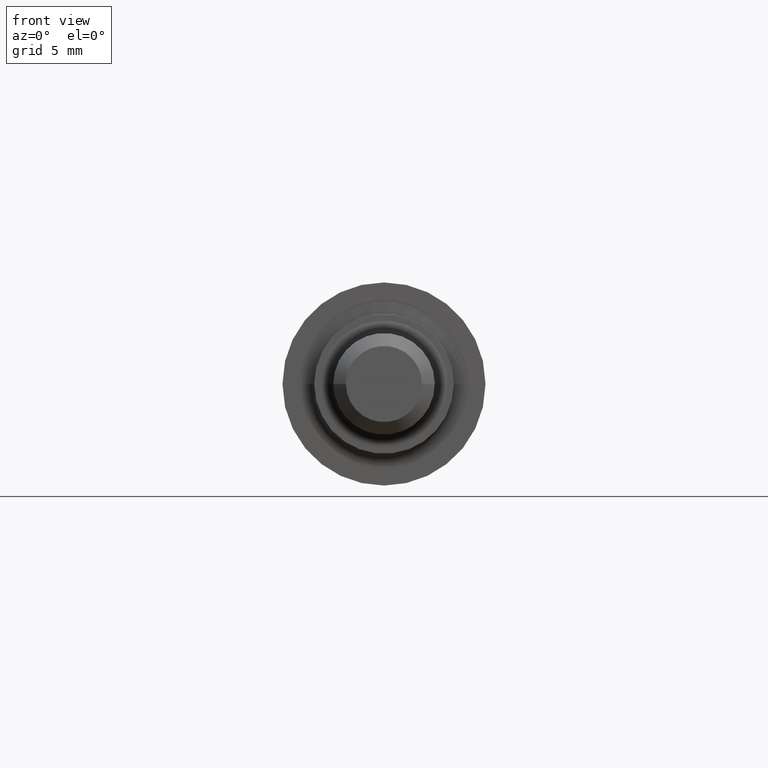
[diagram: clean part render]
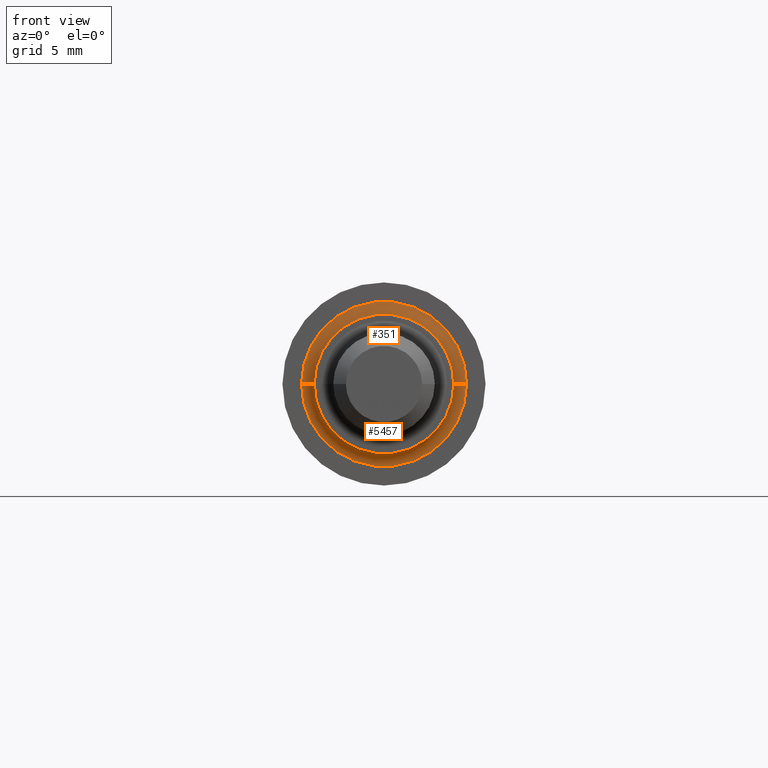
[diagram: same view with one multi-face feature highlighted, each face labeled with its STEP entity id]
A machine part, front view. The highlighted faces form ONE feature: a constant-radius fillet chain: 2 tangent blend faces with common blend radius 1 mm. The faces share edges in the B-rep.
Their STEP definitions:
[1] entity #351 (Torus):
#71 = VERTEX_POINT ( 'NONE', #8811 ) ;
#191 = EDGE_CURVE ( 'NONE', #71, #1598, #1097, .T. ) ;
#309 = CIRCLE ( 'NONE', #3002, 6.499999999999999100 ) ;
#351 = ADVANCED_FACE ( 'NONE', ( #1630 ), #8177, .F. ) ;
#895 = DIRECTION ( 'NONE',  ( 1.000000000000000000, 3.154042683594195100E-016, 0.0000000000000000000 ) ) ;
#1033 = AXIS2_PLACEMENT_3D ( 'NONE', #3756, #6997, #2942 ) ;
#1097 = CIRCLE ( 'NONE', #3608, 5.499999999999999100 ) ;
#1258 = CARTESIAN_POINT ( 'NONE',  ( -1.192622389734054700E-015, 4.999999999999999100, 0.0000000000000000000 ) ) ;
#1316 = DIRECTION ( 'NONE',  ( 1.000000000000000000, 0.0000000000000000000, -1.224646799147353500E-016 ) ) ;
#1356 = DIRECTION ( 'NONE',  ( 1.224646799147353200E-016, 2.921082384358555300E-032, 1.000000000000000000 ) ) ;
#1366 = EDGE_CURVE ( 'NONE', #71, #3510, #10244, .T. ) ;
#1393 = CARTESIAN_POINT ( 'NONE',  ( 6.499999999999998200, 4.000000000000000000, 0.0000000000000000000 ) ) ;
#1539 = CARTESIAN_POINT ( 'NONE',  ( 6.499999999999998200, 5.000000000000000900, 0.0000000000000000000 ) ) ;
#1598 = VERTEX_POINT ( 'NONE', #2775 ) ;
#1630 = FACE_OUTER_BOUND ( 'NONE', #3446, .T. ) ;
#2406 = EDGE_CURVE ( 'NONE', #9537, #3510, #309, .T. ) ;
#2641 = AXIS2_PLACEMENT_3D ( 'NONE', #1393, #3050, #9822 ) ;
#2775 = CARTESIAN_POINT ( 'NONE',  ( -5.500000000000000000, 3.999999999999996400, 6.735557395310441000E-016 ) ) ;
#2942 = DIRECTION ( 'NONE',  ( 1.000000000000000000, 2.385244779468109800E-016, 0.0000000000000000000 ) ) ;
#3002 = AXIS2_PLACEMENT_3D ( 'NONE', #1258, #8007, #7933 ) ;
#3050 = DIRECTION ( 'NONE',  ( 0.0000000000000000000, 0.0000000000000000000, -1.000000000000000000 ) ) ;
#3446 = EDGE_LOOP ( 'NONE', ( #3792, #9145, #5703, #8745 ) ) ;
#3510 = VERTEX_POINT ( 'NONE', #1539 ) ;
#3608 = AXIS2_PLACEMENT_3D ( 'NONE', #5930, #7603, #895 ) ;
#3756 = CARTESIAN_POINT ( 'NONE',  ( -9.540979117872435100E-016, 3.999999999999998200, 0.0000000000000000000 ) ) ;
#3792 = ORIENTED_EDGE ( 'NONE', *, *, #7507, .F. ) ;
#5703 = ORIENTED_EDGE ( 'NONE', *, *, #1366, .T. ) ;
#5930 = CARTESIAN_POINT ( 'NONE',  ( -9.540979117872435100E-016, 3.999999999999998200, 0.0000000000000000000 ) ) ;
#6297 = CARTESIAN_POINT ( 'NONE',  ( -6.500000000000000000, 3.999999999999996400, 7.960204194457794500E-016 ) ) ;
#6407 = AXIS2_PLACEMENT_3D ( 'NONE', #6297, #1356, #1316 ) ;
#6734 = CIRCLE ( 'NONE', #6407, 1.000000000000000000 ) ;
#6997 = DIRECTION ( 'NONE',  ( 2.385244779468109800E-016, -1.000000000000000000, -0.0000000000000000000 ) ) ;
#7507 = EDGE_CURVE ( 'NONE', #1598, #9537, #6734, .T. ) ;
#7603 = DIRECTION ( 'NONE',  ( 2.385244779468109800E-016, -1.000000000000000000, -0.0000000000000000000 ) ) ;
#7933 = DIRECTION ( 'NONE',  ( 1.000000000000000000, 2.668805347656626700E-016, 0.0000000000000000000 ) ) ;
#8007 = DIRECTION ( 'NONE',  ( -2.385244779468109800E-016, 1.000000000000000000, 0.0000000000000000000 ) ) ;
#8177 = TOROIDAL_SURFACE ( 'NONE', #1033, 6.499999999999999100, 1.000000000000000000 ) ;
#8745 = ORIENTED_EDGE ( 'NONE', *, *, #2406, .F. ) ;
#8811 = CARTESIAN_POINT ( 'NONE',  ( 5.499999999999998200, 4.000000000000000000, 0.0000000000000000000 ) ) ;
#9145 = ORIENTED_EDGE ( 'NONE', *, *, #191, .F. ) ;
#9537 = VERTEX_POINT ( 'NONE', #10503 ) ;
#9822 = DIRECTION ( 'NONE',  ( -1.000000000000000000, 0.0000000000000000000, 0.0000000000000000000 ) ) ;
#10244 = CIRCLE ( 'NONE', #2641, 1.000000000000000000 ) ;
#10503 = CARTESIAN_POINT ( 'NONE',  ( -6.500000000000000000, 4.999999999999997300, 7.960204194457795500E-016 ) ) ;
[2] entity #5457 (Torus):
#71 = VERTEX_POINT ( 'NONE', #8811 ) ;
#624 = DIRECTION ( 'NONE',  ( 1.000000000000000000, 2.385244779468109800E-016, 0.0000000000000000000 ) ) ;
#1316 = DIRECTION ( 'NONE',  ( 1.000000000000000000, 0.0000000000000000000, -1.224646799147353500E-016 ) ) ;
#1356 = DIRECTION ( 'NONE',  ( 1.224646799147353200E-016, 2.921082384358555300E-032, 1.000000000000000000 ) ) ;
#1366 = EDGE_CURVE ( 'NONE', #71, #3510, #10244, .T. ) ;
#1393 = CARTESIAN_POINT ( 'NONE',  ( 6.499999999999998200, 4.000000000000000000, 0.0000000000000000000 ) ) ;
#1455 = ORIENTED_EDGE ( 'NONE', *, *, #10122, .F. ) ;
#1505 = DIRECTION ( 'NONE',  ( 1.000000000000000000, 2.668805347656626700E-016, 0.0000000000000000000 ) ) ;
#1539 = CARTESIAN_POINT ( 'NONE',  ( 6.499999999999998200, 5.000000000000000900, 0.0000000000000000000 ) ) ;
#1558 = DIRECTION ( 'NONE',  ( 2.385244779468109800E-016, -1.000000000000000000, -0.0000000000000000000 ) ) ;
#1598 = VERTEX_POINT ( 'NONE', #2775 ) ;
#2641 = AXIS2_PLACEMENT_3D ( 'NONE', #1393, #3050, #9822 ) ;
#2735 = ORIENTED_EDGE ( 'NONE', *, *, #4197, .F. ) ;
#2775 = CARTESIAN_POINT ( 'NONE',  ( -5.500000000000000000, 3.999999999999996400, 6.735557395310441000E-016 ) ) ;
#3050 = DIRECTION ( 'NONE',  ( 0.0000000000000000000, 0.0000000000000000000, -1.000000000000000000 ) ) ;
#3214 = DIRECTION ( 'NONE',  ( 1.000000000000000000, 3.154042683594195100E-016, 0.0000000000000000000 ) ) ;
#3495 = FACE_OUTER_BOUND ( 'NONE', #10005, .T. ) ;
#3510 = VERTEX_POINT ( 'NONE', #1539 ) ;
#3837 = AXIS2_PLACEMENT_3D ( 'NONE', #3971, #1558, #3214 ) ;
#3971 = CARTESIAN_POINT ( 'NONE',  ( -9.540979117872435100E-016, 3.999999999999998200, 0.0000000000000000000 ) ) ;
#4197 = EDGE_CURVE ( 'NONE', #3510, #9537, #9042, .T. ) ;
#4725 = CARTESIAN_POINT ( 'NONE',  ( -9.540979117872435100E-016, 3.999999999999998200, 0.0000000000000000000 ) ) ;
#4818 = ORIENTED_EDGE ( 'NONE', *, *, #1366, .F. ) ;
#4951 = TOROIDAL_SURFACE ( 'NONE', #6600, 6.499999999999999100, 1.000000000000000000 ) ;
#5457 = ADVANCED_FACE ( 'NONE', ( #3495 ), #4951, .F. ) ;
#6297 = CARTESIAN_POINT ( 'NONE',  ( -6.500000000000000000, 3.999999999999996400, 7.960204194457794500E-016 ) ) ;
#6407 = AXIS2_PLACEMENT_3D ( 'NONE', #6297, #1356, #1316 ) ;
#6600 = AXIS2_PLACEMENT_3D ( 'NONE', #4725, #8029, #624 ) ;
#6734 = CIRCLE ( 'NONE', #6407, 1.000000000000000000 ) ;
#6926 = CIRCLE ( 'NONE', #3837, 5.499999999999999100 ) ;
#7507 = EDGE_CURVE ( 'NONE', #1598, #9537, #6734, .T. ) ;
#8029 = DIRECTION ( 'NONE',  ( 2.385244779468109800E-016, -1.000000000000000000, -0.0000000000000000000 ) ) ;
#8811 = CARTESIAN_POINT ( 'NONE',  ( 5.499999999999998200, 4.000000000000000000, 0.0000000000000000000 ) ) ;
#9042 = CIRCLE ( 'NONE', #10432, 6.499999999999999100 ) ;
#9537 = VERTEX_POINT ( 'NONE', #10503 ) ;
#9822 = DIRECTION ( 'NONE',  ( -1.000000000000000000, 0.0000000000000000000, 0.0000000000000000000 ) ) ;
#9824 = DIRECTION ( 'NONE',  ( -2.385244779468109800E-016, 1.000000000000000000, 0.0000000000000000000 ) ) ;
#10005 = EDGE_LOOP ( 'NONE', ( #1455, #10439, #2735, #4818 ) ) ;
#10122 = EDGE_CURVE ( 'NONE', #1598, #71, #6926, .T. ) ;
#10244 = CIRCLE ( 'NONE', #2641, 1.000000000000000000 ) ;
#10432 = AXIS2_PLACEMENT_3D ( 'NONE', #10659, #9824, #1505 ) ;
#10439 = ORIENTED_EDGE ( 'NONE', *, *, #7507, .T. ) ;
#10503 = CARTESIAN_POINT ( 'NONE',  ( -6.500000000000000000, 4.999999999999997300, 7.960204194457795500E-016 ) ) ;
#10659 = CARTESIAN_POINT ( 'NONE',  ( -1.192622389734054700E-015, 4.999999999999999100, 0.0000000000000000000 ) ) ;